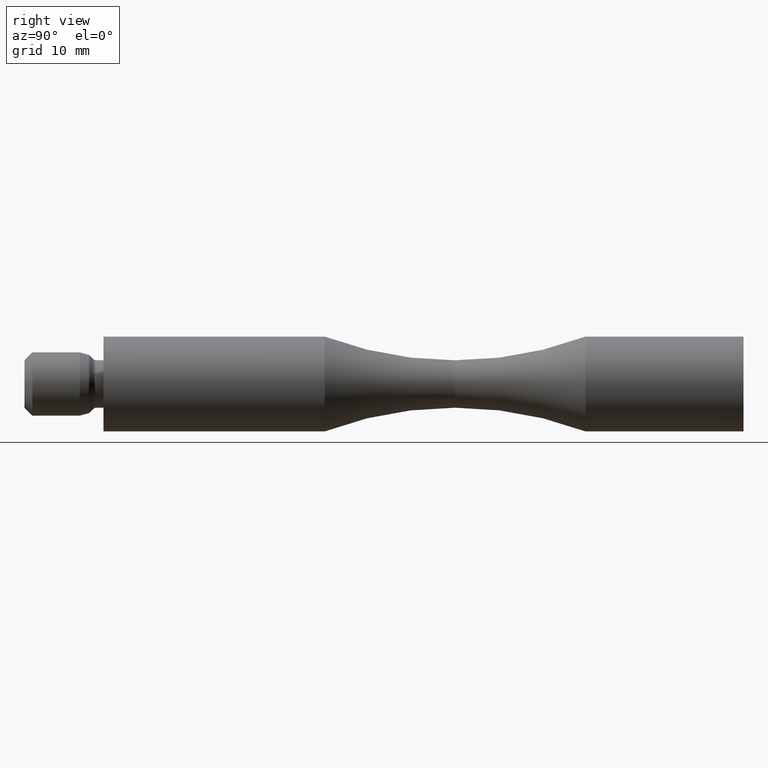
[diagram: clean part render]
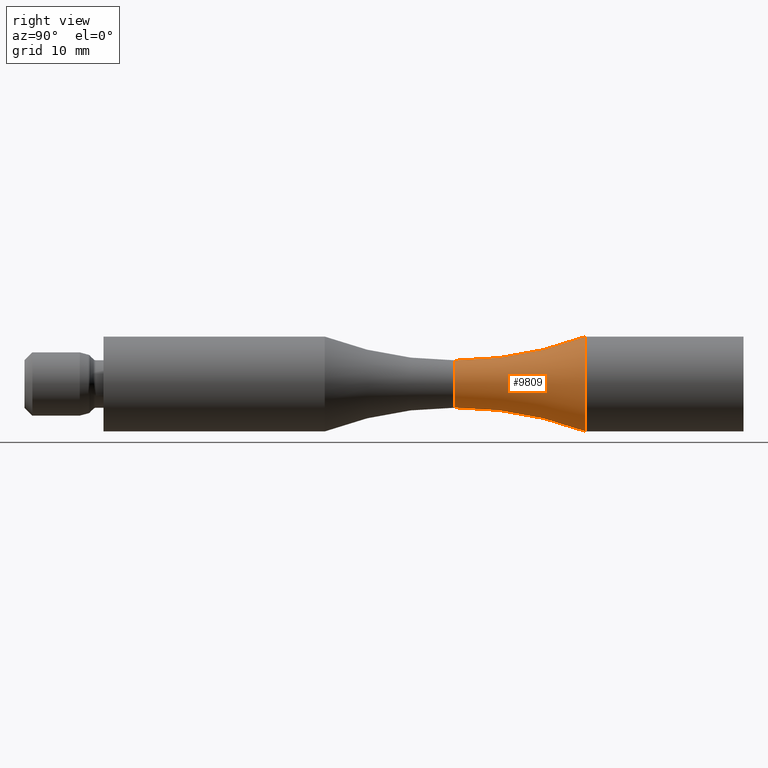
[diagram: same view with one face highlighted and labeled with its STEP entity id]
A machine part, right view. The second image highlights one B-rep face of the part: STEP entity #9809.
In plain terms, the highlighted toroidal blend (fillet) surface has major radius 49.875 mm and minor (blend) radius 46.875 mm.
Its self-contained STEP definition (entity closure, byte-faithful):
#112 = VERTEX_POINT ( 'NONE', #6063 ) ;
#182 = CARTESIAN_POINT ( 'NONE',  ( 0.0000000000000000000, 44.50000000000000000, -49.87499999999998600 ) ) ;
#233 = AXIS2_PLACEMENT_3D ( 'NONE', #8423, #2234, #13624 ) ;
#412 = EDGE_CURVE ( 'NONE', #10955, #553, #12627, .T. ) ;
#553 = VERTEX_POINT ( 'NONE', #1287 ) ;
#993 = EDGE_LOOP ( 'NONE', ( #11643, #11947, #5195, #6701 ) ) ;
#1287 = CARTESIAN_POINT ( 'NONE',  ( 7.347880794884123700E-016, 61.00000000000000000, 6.000000000000003600 ) ) ;
#1304 = DIRECTION ( 'NONE',  ( -1.224646799147353200E-016, 0.0000000000000000000, -1.000000000000000000 ) ) ;
#1539 = DIRECTION ( 'NONE',  ( -0.0000000000000000000, -1.000000000000000000, -0.0000000000000000000 ) ) ;
#2234 = DIRECTION ( 'NONE',  ( -0.0000000000000000000, -1.000000000000000000, -0.0000000000000000000 ) ) ;
#2474 = CIRCLE ( 'NONE', #6934, 6.000000000000002700 ) ;
#2705 = EDGE_CURVE ( 'NONE', #112, #10955, #7236, .T. ) ;
#3375 = DIRECTION ( 'NONE',  ( 0.0000000000000000000, 0.0000000000000000000, 1.000000000000000000 ) ) ;
#3409 = DIRECTION ( 'NONE',  ( -0.0000000000000000000, -1.000000000000000000, -0.0000000000000000000 ) ) ;
#3921 = CIRCLE ( 'NONE', #9273, 46.87499999999998600 ) ;
#3977 = AXIS2_PLACEMENT_3D ( 'NONE', #6590, #3409, #13014 ) ;
#4702 = CARTESIAN_POINT ( 'NONE',  ( 0.0000000000000000000, 61.00000000000000000, -6.000000000000003600 ) ) ;
#5195 = ORIENTED_EDGE ( 'NONE', *, *, #12220, .T. ) ;
#5680 = DIRECTION ( 'NONE',  ( 0.0000000000000000000, 0.0000000000000000000, -1.000000000000000000 ) ) ;
#6063 = CARTESIAN_POINT ( 'NONE',  ( 0.0000000000000000000, 44.50000000000000700, -3.000000000000002700 ) ) ;
#6138 = TOROIDAL_SURFACE ( 'NONE', #3977, 49.87499999999998600, 46.87499999999998600 ) ;
#6362 = DIRECTION ( 'NONE',  ( 1.000000000000000000, 0.0000000000000000000, -1.224646799147353200E-016 ) ) ;
#6590 = CARTESIAN_POINT ( 'NONE',  ( 0.0000000000000000000, 44.50000000000000000, 0.0000000000000000000 ) ) ;
#6701 = ORIENTED_EDGE ( 'NONE', *, *, #412, .F. ) ;
#6934 = AXIS2_PLACEMENT_3D ( 'NONE', #7830, #1539, #5680 ) ;
#7236 = CIRCLE ( 'NONE', #233, 3.000000000000002700 ) ;
#7830 = CARTESIAN_POINT ( 'NONE',  ( 0.0000000000000000000, 61.00000000000000000, 0.0000000000000000000 ) ) ;
#8423 = CARTESIAN_POINT ( 'NONE',  ( 0.0000000000000000000, 44.50000000000000700, 0.0000000000000000000 ) ) ;
#8878 = CARTESIAN_POINT ( 'NONE',  ( 6.107925910747422600E-015, 44.50000000000000000, 49.87499999999998600 ) ) ;
#9132 = VERTEX_POINT ( 'NONE', #4702 ) ;
#9273 = AXIS2_PLACEMENT_3D ( 'NONE', #182, #9682, #3375 ) ;
#9682 = DIRECTION ( 'NONE',  ( -1.000000000000000000, 0.0000000000000000000, 0.0000000000000000000 ) ) ;
#9809 = ADVANCED_FACE ( 'NONE', ( #11741 ), #6138, .F. ) ;
#10955 = VERTEX_POINT ( 'NONE', #12941 ) ;
#11643 = ORIENTED_EDGE ( 'NONE', *, *, #2705, .F. ) ;
#11741 = FACE_OUTER_BOUND ( 'NONE', #993, .T. ) ;
#11947 = ORIENTED_EDGE ( 'NONE', *, *, #12893, .T. ) ;
#12220 = EDGE_CURVE ( 'NONE', #9132, #553, #2474, .T. ) ;
#12534 = AXIS2_PLACEMENT_3D ( 'NONE', #8878, #6362, #1304 ) ;
#12627 = CIRCLE ( 'NONE', #12534, 46.87499999999998600 ) ;
#12893 = EDGE_CURVE ( 'NONE', #112, #9132, #3921, .T. ) ;
#12941 = CARTESIAN_POINT ( 'NONE',  ( 3.673940397442066800E-016, 44.50000000000000700, 3.000000000000002700 ) ) ;
#13014 = DIRECTION ( 'NONE',  ( 0.0000000000000000000, 0.0000000000000000000, -1.000000000000000000 ) ) ;
#13624 = DIRECTION ( 'NONE',  ( 0.0000000000000000000, 0.0000000000000000000, -1.000000000000000000 ) ) ;